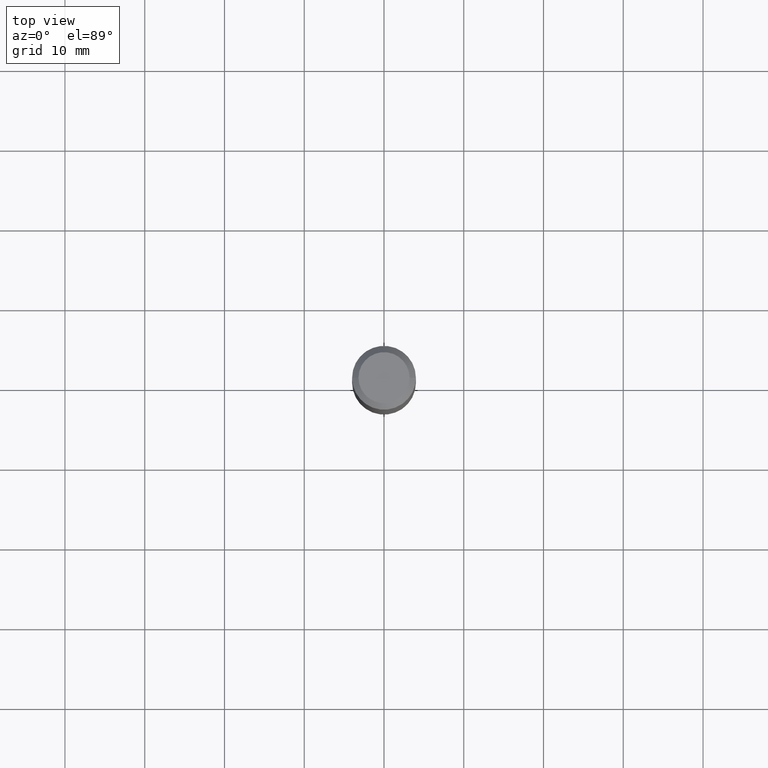
[diagram: clean part render]
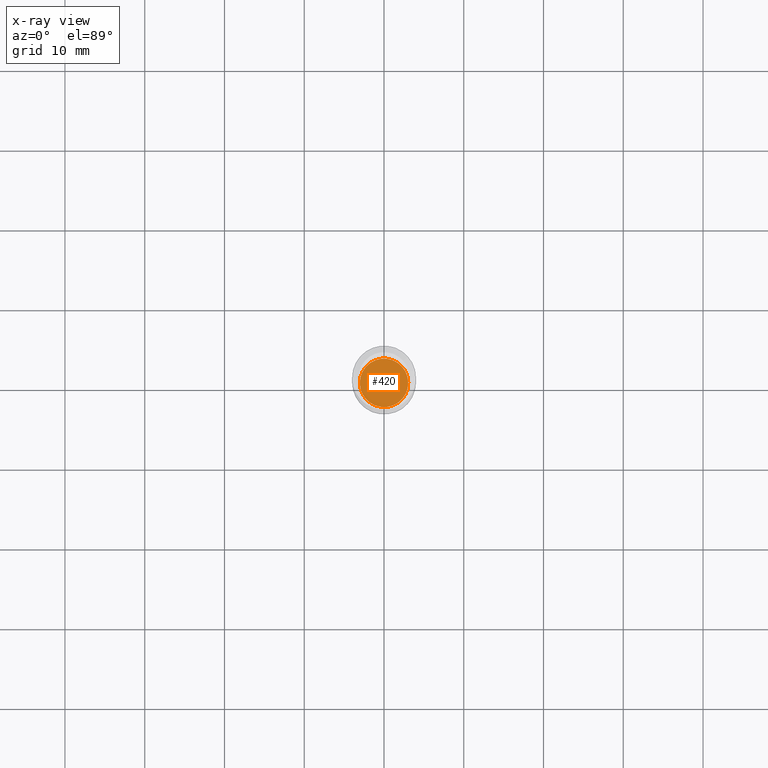
[diagram: x-ray — body ghosted, one internal face saturated and labeled with its STEP entity id]
A machine part, top view, then the same camera in x-ray: the body is ghosted and one INTERNAL B-rep face — a face not visible from any outside direction — is saturated and labeled: STEP entity #420.
In plain terms, the highlighted planar face has unit normal (-0, 0, 1).
Its self-contained STEP definition (entity closure, byte-faithful):
#9 = EDGE_LOOP ( 'NONE', ( #446, #57 ) ) ;
#11 = DIRECTION ( 'NONE',  ( -2.445468806185136597E-29, 3.491481338843145583E-15, 1.000000000000000000 ) ) ;
#24 = CIRCLE ( 'NONE', #361, 0.1195999999999999980 ) ;
#57 = ORIENTED_EDGE ( 'NONE', *, *, #196, .F. ) ;
#70 = DIRECTION ( 'NONE',  ( -2.445468806185136597E-29, 3.491481338843145583E-15, 1.000000000000000000 ) ) ;
#196 = EDGE_CURVE ( 'NONE', #427, #467, #250, .T. ) ;
#209 = FACE_OUTER_BOUND ( 'NONE', #9, .T. ) ;
#219 = DIRECTION ( 'NONE',  ( 1.000000000000000000, -6.982962677686269866E-15, 0.000000000000000000 ) ) ;
#250 = CIRCLE ( 'NONE', #294, 0.1195999999999999980 ) ;
#254 = DIRECTION ( 'NONE',  ( -2.438088387897960049E-29, 3.491481338843145188E-15, 1.000000000000000000 ) ) ;
#262 = CARTESIAN_POINT ( 'NONE',  ( 0.1195999999999999980, -6.059815011696161424E-15, -1.496400000000000174 ) ) ;
#277 = DIRECTION ( 'NONE',  ( 1.000000000000000000, -6.982962677686269866E-15, 0.000000000000000000 ) ) ;
#294 = AXIS2_PLACEMENT_3D ( 'NONE', #419, #70, #219 ) ;
#329 = AXIS2_PLACEMENT_3D ( 'NONE', #478, #254, #487 ) ;
#338 = CARTESIAN_POINT ( 'NONE',  ( -0.1195999999999999980, -4.372194336301692835E-15, -1.496400000000000174 ) ) ;
#356 = CARTESIAN_POINT ( 'NONE',  ( 3.659399521575438742E-29, -5.224652675444883351E-15, -1.496400000000000174 ) ) ;
#361 = AXIS2_PLACEMENT_3D ( 'NONE', #356, #11, #277 ) ;
#365 = EDGE_CURVE ( 'NONE', #467, #427, #24, .T. ) ;
#367 = PLANE ( 'NONE',  #329 ) ;
#419 = CARTESIAN_POINT ( 'NONE',  ( 3.659399521575438742E-29, -5.224652675444883351E-15, -1.496400000000000174 ) ) ;
#420 = ADVANCED_FACE ( 'NONE', ( #209 ), #367, .F. ) ;
#427 = VERTEX_POINT ( 'NONE', #338 ) ;
#446 = ORIENTED_EDGE ( 'NONE', *, *, #365, .F. ) ;
#467 = VERTEX_POINT ( 'NONE', #262 ) ;
#478 = CARTESIAN_POINT ( 'NONE',  ( 3.659399521575438742E-29, -5.224652675444883351E-15, -1.496400000000000174 ) ) ;
#487 = DIRECTION ( 'NONE',  ( 1.000000000000000000, -6.982962677686265922E-15, 4.876176775795935793E-29 ) ) ;